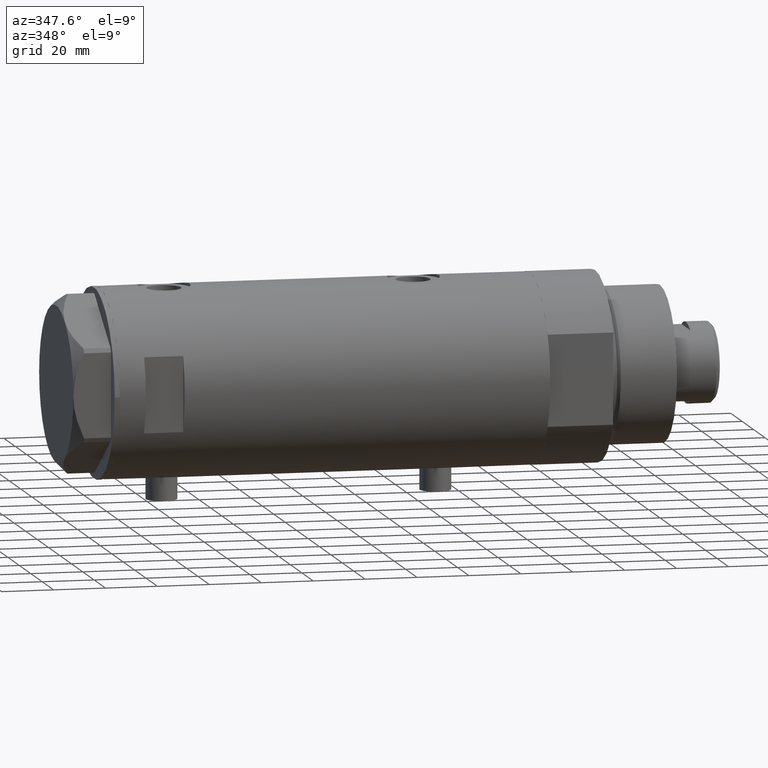
[diagram: clean part render]
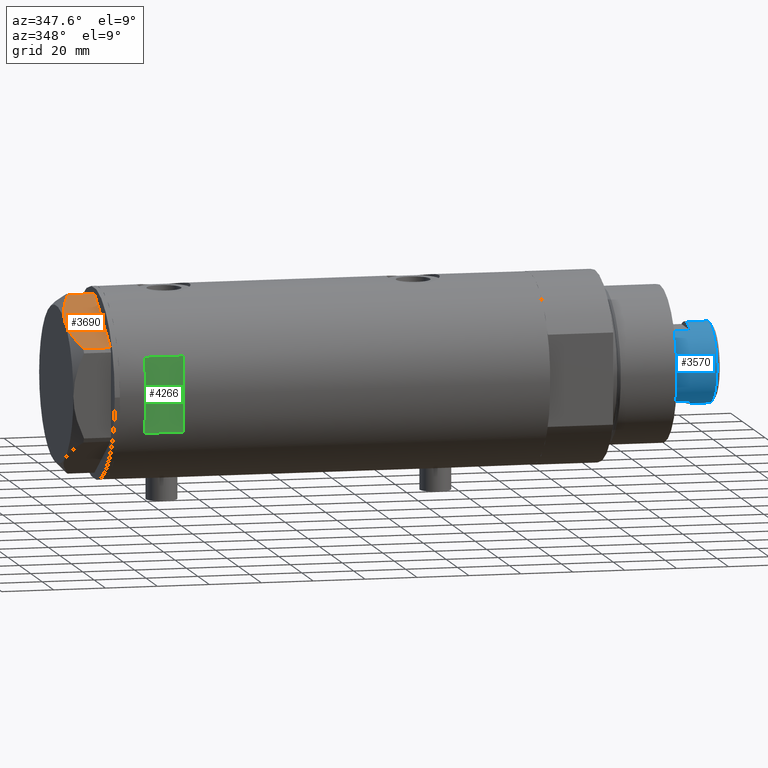
[diagram: same view with three faces highlighted in distinct colors, each labeled with its STEP entity id]
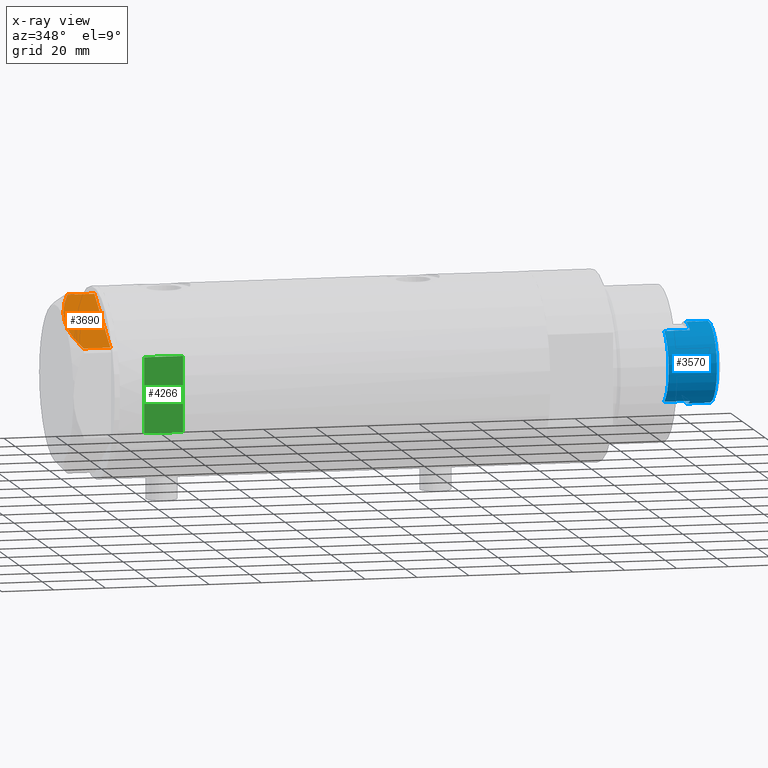
[diagram: x-ray of the same camera — body ghosted, the three highlighted faces saturated]
A machine part, auxiliary view with three faces highlighted in distinct colors.
The next image is the same camera in x-ray (body ghosted, the three faces saturated) — at least one of them is partly hidden behind the body in this view.
Their STEP definitions:

[orange] entity #3690 — the highlighted planar face has unit normal (-0, 0.5, -0.866).
#150 = CARTESIAN_POINT ( 'NONE',  ( -16.22616138060132940, -25.27283751037305137, 14.47500996539161910 ) ) ;
#185 = CARTESIAN_POINT ( 'NONE',  ( -10.17780078270465616, -28.76486012972462447, 14.10092492974135148 ) ) ;
#187 = CARTESIAN_POINT ( 'NONE',  ( -18.07068105770097688, -24.20790357827401351, 14.29910535634586921 ) ) ;
#208 = VERTEX_POINT ( 'NONE', #3869 ) ;
#215 = AXIS2_PLACEMENT_3D ( 'NONE', #2591, #3310, #3959 ) ;
#269 = LINE ( 'NONE', #1652, #3312 ) ;
#490 = CARTESIAN_POINT ( 'NONE',  ( -0.9699484522385841689, -34.08101615137752560, 10.40518423703605322 ) ) ;
#537 = EDGE_CURVE ( 'NONE', #208, #4217, #269, .T. ) ;
#540 = PLANE ( 'NONE',  #215 ) ;
#547 = CARTESIAN_POINT ( 'NONE',  ( -7.227334865371702222, -30.46831242133162476, 13.19311392138147276 ) ) ;
#597 = B_SPLINE_CURVE_WITH_KNOTS ( 'NONE', 3,
 ( #702, #4340, #185, #547, #1210, #913, #832, #3948, #850, #490 ),
 .UNSPECIFIED., .F., .F.,
 ( 4, 2, 2, 2, 4 ),
 ( 0.01795453117522812295, 0.02625795893839792672, 0.02833381587919037853, 0.03040967281998283034, 0.03456138670156772702 ),
 .UNSPECIFIED. ) ;
#659 = CARTESIAN_POINT ( 'NONE',  ( -0.9699484522385841689, -34.08101615137752560, 10.40518423703605322 ) ) ;
#702 = CARTESIAN_POINT ( 'NONE',  ( -14.99999999999999645, -25.98076211353316367, 14.50000000000000000 ) ) ;
#747 = LINE ( 'NONE', #1774, #4264 ) ;
#763 = CARTESIAN_POINT ( 'NONE',  ( -0.9699484522385850571, -34.08101615137752560, 14.50000000000000000 ) ) ;
#832 = CARTESIAN_POINT ( 'NONE',  ( -4.902385341342997194, -31.81062265488187535, 12.31959434659020758 ) ) ;
#850 = CARTESIAN_POINT ( 'NONE',  ( -2.073315687465953960, -33.44398678110400169, 11.01056656432686509 ) ) ;
#899 = CARTESIAN_POINT ( 'NONE',  ( -14.99999999999999645, -25.98076211353316367, 14.50000000000000000 ) ) ;
#913 = CARTESIAN_POINT ( 'NONE',  ( -5.477433827011700451, -31.47861825688396564, 12.55468001512206300 ) ) ;
#1092 = ORIENTED_EDGE ( 'NONE', *, *, #1593, .T. ) ;
#1125 = DIRECTION ( 'NONE',  ( 0.000000000000000000, 0.000000000000000000, 1.000000000000000000 ) ) ;
#1148 = EDGE_LOOP ( 'NONE', ( #2623, #2699, #4338, #1092, #1373 ) ) ;
#1166 = VERTEX_POINT ( 'NONE', #2991 ) ;
#1210 = CARTESIAN_POINT ( 'NONE',  ( -6.639151835533460222, -30.80790005194150183, 12.99122625442232604 ) ) ;
#1373 = ORIENTED_EDGE ( 'NONE', *, *, #2273, .F. ) ;
#1521 = FACE_OUTER_BOUND ( 'NONE', #1148, .T. ) ;
#1593 = EDGE_CURVE ( 'NONE', #4217, #2195, #3859, .T. ) ;
#1618 = B_SPLINE_CURVE_WITH_KNOTS ( 'NONE', 3,
 ( #4384, #2567, #4343, #3929, #2627, #187, #4298, #150, #3994, #899 ),
 .UNSPECIFIED., .F., .F.,
 ( 4, 2, 2, 2, 4 ),
 ( 0.001230196178133391958, 0.009592363676680756152, 0.01377344742595443955, 0.01586398930059127951, 0.01795453117522812295 ),
 .UNSPECIFIED. ) ;
#1652 = CARTESIAN_POINT ( 'NONE',  ( -30.00000000000000000, -17.32050807568877460, 0.000000000000000000 ) ) ;
#1774 = CARTESIAN_POINT ( 'NONE',  ( -29.03005154776141339, -17.88050807568878042, 14.50000000000000000 ) ) ;
#1875 = VECTOR ( 'NONE', #1125, 1000.000000000000000 ) ;
#2195 = VERTEX_POINT ( 'NONE', #659 ) ;
#2273 = EDGE_CURVE ( 'NONE', #1166, #2195, #597, .T. ) ;
#2475 = DIRECTION ( 'NONE',  ( -0.000000000000000000, 0.000000000000000000, -1.000000000000000000 ) ) ;
#2567 = CARTESIAN_POINT ( 'NONE',  ( -26.82462797925472842, -19.15380996664326219, 11.61522964162834626 ) ) ;
#2591 = CARTESIAN_POINT ( 'NONE',  ( -30.00000000000000000, -17.32050807568877460, 14.50000000000000000 ) ) ;
#2623 = ORIENTED_EDGE ( 'NONE', *, *, #2979, .F. ) ;
#2627 = CARTESIAN_POINT ( 'NONE',  ( -19.88494945387373747, -23.16043523136143278, 14.00566141361761119 ) ) ;
#2644 = CARTESIAN_POINT ( 'NONE',  ( -29.03005154776157326, -17.88050807568868805, 10.40518423703595374 ) ) ;
#2699 = ORIENTED_EDGE ( 'NONE', *, *, #2790, .T. ) ;
#2790 = EDGE_CURVE ( 'NONE', #2919, #208, #747, .T. ) ;
#2903 = CARTESIAN_POINT ( 'NONE',  ( -0.9699484522385886098, -34.08101615137752560, 0.000000000000000000 ) ) ;
#2919 = VERTEX_POINT ( 'NONE', #2644 ) ;
#2979 = EDGE_CURVE ( 'NONE', #2919, #1166, #1618, .T. ) ;
#2991 = CARTESIAN_POINT ( 'NONE',  ( -14.99999999999999645, -25.98076211353316367, 14.50000000000000000 ) ) ;
#3048 = DIRECTION ( 'NONE',  ( 0.8660254037844387076, -0.4999999999999997780, 0.000000000000000000 ) ) ;
#3310 = DIRECTION ( 'NONE',  ( 0.4999999999999998335, 0.8660254037844388186, -0.000000000000000000 ) ) ;
#3312 = VECTOR ( 'NONE', #3048, 1000.000000000000227 ) ;
#3690 = ADVANCED_FACE ( 'NONE', ( #1521 ), #540, .F. ) ;
#3859 = LINE ( 'NONE', #763, #1875 ) ;
#3869 = CARTESIAN_POINT ( 'NONE',  ( -29.03005154776141339, -17.88050807568878042, 0.000000000000000000 ) ) ;
#3929 = CARTESIAN_POINT ( 'NONE',  ( -21.07077273125423744, -22.47579984295447630, 13.71922620632299150 ) ) ;
#3948 = CARTESIAN_POINT ( 'NONE',  ( -3.192653970405496811, -32.79773652213460622, 11.56973717813738745 ) ) ;
#3959 = DIRECTION ( 'NONE',  ( -0.8660254037844387076, 0.4999999999999997780, 0.000000000000000000 ) ) ;
#3994 = CARTESIAN_POINT ( 'NONE',  ( -15.61187731150016411, -25.62749458302751648, 14.50000000000000355 ) ) ;
#4217 = VERTEX_POINT ( 'NONE', #2903 ) ;
#4264 = VECTOR ( 'NONE', #2475, 1000.000000000000000 ) ;
#4298 = CARTESIAN_POINT ( 'NONE',  ( -17.45962150578836258, -24.56069897506165489, 14.37423503257922164 ) ) ;
#4338 = ORIENTED_EDGE ( 'NONE', *, *, #537, .T. ) ;
#4340 = CARTESIAN_POINT ( 'NONE',  ( -12.56968319190124639, -27.38390617690504669, 14.50000000000000711 ) ) ;
#4343 = CARTESIAN_POINT ( 'NONE',  ( -24.56959650245797988, -20.45575299680293568, 12.63511531451932512 ) ) ;
#4384 = CARTESIAN_POINT ( 'NONE',  ( -29.03005154776157326, -17.88050807568868805, 10.40518423703595374 ) ) ;

[blue] entity #3570 — the highlighted cylindrical surface (partial cylindrical patch) has radius 15.5 mm, axis along (-1, -0, 0).
#111 = VERTEX_POINT ( 'NONE', #3846 ) ;
#137 = VERTEX_POINT ( 'NONE', #4172 ) ;
#149 = EDGE_CURVE ( 'NONE', #4012, #3947, #1807, .T. ) ;
#166 = ORIENTED_EDGE ( 'NONE', *, *, #3412, .T. ) ;
#181 = EDGE_CURVE ( 'NONE', #111, #1606, #4090, .T. ) ;
#313 = ORIENTED_EDGE ( 'NONE', *, *, #1093, .F. ) ;
#345 = DIRECTION ( 'NONE',  ( -0.000000000000000000, -0.000000000000000000, -1.000000000000000000 ) ) ;
#367 = DIRECTION ( 'NONE',  ( -0.000000000000000000, -0.000000000000000000, -1.000000000000000000 ) ) ;
#369 = CARTESIAN_POINT ( 'NONE',  ( 0.000000000000000000, 0.000000000000000000, 190.0000000000000000 ) ) ;
#375 = DIRECTION ( 'NONE',  ( 1.000000000000000000, 0.000000000000000000, 0.000000000000000000 ) ) ;
#457 = DIRECTION ( 'NONE',  ( -0.000000000000000000, -0.000000000000000000, -1.000000000000000000 ) ) ;
#527 = CARTESIAN_POINT ( 'NONE',  ( 0.000000000000000000, 0.000000000000000000, 200.0000000000000000 ) ) ;
#592 = LINE ( 'NONE', #2859, #3399 ) ;
#596 = EDGE_CURVE ( 'NONE', #3947, #2018, #3604, .T. ) ;
#683 = CARTESIAN_POINT ( 'NONE',  ( 0.000000000000000000, 0.000000000000000000, 208.5999999999999659 ) ) ;
#749 = CARTESIAN_POINT ( 'NONE',  ( 13.48630416385453046, -7.639999999999995239, 200.0000000000000000 ) ) ;
#888 = ORIENTED_EDGE ( 'NONE', *, *, #3307, .T. ) ;
#1072 = CARTESIAN_POINT ( 'NONE',  ( 13.48630416385452691, -7.639999999999914415, 190.0000000000000000 ) ) ;
#1093 = EDGE_CURVE ( 'NONE', #3925, #2018, #3932, .T. ) ;
#1108 = ORIENTED_EDGE ( 'NONE', *, *, #149, .T. ) ;
#1128 = CARTESIAN_POINT ( 'NONE',  ( 15.49999999999999822, 1.898202538678397163E-15, 200.0000000000000000 ) ) ;
#1139 = CYLINDRICAL_SURFACE ( 'NONE', #4412, 15.49999999999999822 ) ;
#1206 = AXIS2_PLACEMENT_3D ( 'NONE', #683, #2090, #2339 ) ;
#1208 = DIRECTION ( 'NONE',  ( 0.000000000000000000, 0.000000000000000000, 1.000000000000000000 ) ) ;
#1216 = AXIS2_PLACEMENT_3D ( 'NONE', #4079, #3486, #375 ) ;
#1391 = EDGE_CURVE ( 'NONE', #3299, #4012, #3167, .T. ) ;
#1416 = CARTESIAN_POINT ( 'NONE',  ( 13.48630416385453046, -7.639999999999995239, 200.0000000000000000 ) ) ;
#1481 = DIRECTION ( 'NONE',  ( 0.000000000000000000, 0.000000000000000000, 1.000000000000000000 ) ) ;
#1517 = AXIS2_PLACEMENT_3D ( 'NONE', #527, #1208, #1564 ) ;
#1527 = CARTESIAN_POINT ( 'NONE',  ( -15.50000000000000178, 0.000000000000000000, 200.0000000000000000 ) ) ;
#1564 = DIRECTION ( 'NONE',  ( 1.000000000000000000, 0.000000000000000000, 0.000000000000000000 ) ) ;
#1606 = VERTEX_POINT ( 'NONE', #1797 ) ;
#1797 = CARTESIAN_POINT ( 'NONE',  ( -15.49999999999999822, 0.000000000000000000, 208.5999999999999659 ) ) ;
#1807 = LINE ( 'NONE', #3568, #3527 ) ;
#1851 = DIRECTION ( 'NONE',  ( -0.000000000000000000, -0.000000000000000000, -1.000000000000000000 ) ) ;
#1892 = ORIENTED_EDGE ( 'NONE', *, *, #596, .T. ) ;
#1920 = CARTESIAN_POINT ( 'NONE',  ( -13.48630416385452335, -7.640000000000004121, 200.0000000000000000 ) ) ;
#1951 = VECTOR ( 'NONE', #3189, 1000.000000000000000 ) ;
#1955 = ORIENTED_EDGE ( 'NONE', *, *, #181, .T. ) ;
#2018 = VERTEX_POINT ( 'NONE', #1072 ) ;
#2090 = DIRECTION ( 'NONE',  ( 0.000000000000000000, 0.000000000000000000, -1.000000000000000000 ) ) ;
#2339 = DIRECTION ( 'NONE',  ( 1.000000000000000000, 0.000000000000000000, 0.000000000000000000 ) ) ;
#2678 = CIRCLE ( 'NONE', #1517, 15.50000000000000000 ) ;
#2811 = VECTOR ( 'NONE', #1851, 1000.000000000000000 ) ;
#2818 = DIRECTION ( 'NONE',  ( -1.000000000000000000, 0.000000000000000000, 0.000000000000000000 ) ) ;
#2859 = CARTESIAN_POINT ( 'NONE',  ( -15.49999999999999822, 0.000000000000000000, 200.0000000000000000 ) ) ;
#2894 = EDGE_CURVE ( 'NONE', #111, #137, #4276, .T. ) ;
#2912 = ORIENTED_EDGE ( 'NONE', *, *, #1391, .T. ) ;
#3107 = CARTESIAN_POINT ( 'NONE',  ( 0.000000000000000000, 0.000000000000000000, 200.0000000000000000 ) ) ;
#3167 = CIRCLE ( 'NONE', #1216, 15.50000000000000000 ) ;
#3178 = FACE_OUTER_BOUND ( 'NONE', #4080, .T. ) ;
#3189 = DIRECTION ( 'NONE',  ( -0.000000000000000000, -0.000000000000000000, -1.000000000000000000 ) ) ;
#3218 = CARTESIAN_POINT ( 'NONE',  ( -13.48630416385452513, -7.639999999999921521, 190.0000000000000000 ) ) ;
#3299 = VERTEX_POINT ( 'NONE', #1527 ) ;
#3307 = EDGE_CURVE ( 'NONE', #3925, #137, #2678, .T. ) ;
#3399 = VECTOR ( 'NONE', #345, 1000.000000000000000 ) ;
#3412 = EDGE_CURVE ( 'NONE', #1606, #3299, #592, .T. ) ;
#3486 = DIRECTION ( 'NONE',  ( 0.000000000000000000, 0.000000000000000000, 1.000000000000000000 ) ) ;
#3527 = VECTOR ( 'NONE', #457, 1000.000000000000000 ) ;
#3568 = CARTESIAN_POINT ( 'NONE',  ( -13.48630416385452691, -7.640000000000001457, 200.0000000000000000 ) ) ;
#3570 = ADVANCED_FACE ( 'NONE', ( #3178 ), #1139, .T. ) ;
#3604 = CIRCLE ( 'NONE', #4247, 15.49999999999999822 ) ;
#3831 = DIRECTION ( 'NONE',  ( 1.000000000000000000, 0.000000000000000000, 0.000000000000000000 ) ) ;
#3846 = CARTESIAN_POINT ( 'NONE',  ( 15.49999999999999822, 1.898202538678397163E-15, 208.5999999999999659 ) ) ;
#3925 = VERTEX_POINT ( 'NONE', #1416 ) ;
#3932 = LINE ( 'NONE', #749, #2811 ) ;
#3947 = VERTEX_POINT ( 'NONE', #3218 ) ;
#4012 = VERTEX_POINT ( 'NONE', #1920 ) ;
#4079 = CARTESIAN_POINT ( 'NONE',  ( 0.000000000000000000, 0.000000000000000000, 200.0000000000000000 ) ) ;
#4080 = EDGE_LOOP ( 'NONE', ( #4142, #1955, #166, #2912, #1108, #1892, #313, #888 ) ) ;
#4090 = CIRCLE ( 'NONE', #1206, 15.49999999999999822 ) ;
#4142 = ORIENTED_EDGE ( 'NONE', *, *, #2894, .F. ) ;
#4172 = CARTESIAN_POINT ( 'NONE',  ( 15.50000000000000178, 1.898202538678397557E-15, 200.0000000000000000 ) ) ;
#4247 = AXIS2_PLACEMENT_3D ( 'NONE', #369, #1481, #3831 ) ;
#4276 = LINE ( 'NONE', #1128, #1951 ) ;
#4412 = AXIS2_PLACEMENT_3D ( 'NONE', #3107, #367, #2818 ) ;

[green] entity #4266 — the highlighted planar face has unit normal (-0, 1, 0).
#97 = ORIENTED_EDGE ( 'NONE', *, *, #176, .T. ) ;
#176 = EDGE_CURVE ( 'NONE', #3870, #2810, #3799, .T. ) ;
#336 = CARTESIAN_POINT ( 'NONE',  ( -14.49137674618942739, -33.50000000000000000, -82.90000000000000568 ) ) ;
#406 = FACE_OUTER_BOUND ( 'NONE', #2081, .T. ) ;
#492 = EDGE_CURVE ( 'NONE', #2810, #4109, #610, .T. ) ;
#610 = LINE ( 'NONE', #2660, #4319 ) ;
#658 = CARTESIAN_POINT ( 'NONE',  ( -36.50000000000000000, -33.50000000000000000, 57.89999999999999147 ) ) ;
#678 = ORIENTED_EDGE ( 'NONE', *, *, #874, .T. ) ;
#750 = CARTESIAN_POINT ( 'NONE',  ( -36.50000000000000000, -33.50000000000000000, 72.89999999999999147 ) ) ;
#753 = ORIENTED_EDGE ( 'NONE', *, *, #4303, .F. ) ;
#838 = DIRECTION ( 'NONE',  ( 0.000000000000000000, 1.000000000000000000, 0.000000000000000000 ) ) ;
#874 = EDGE_CURVE ( 'NONE', #1665, #3870, #3704, .T. ) ;
#1088 = DIRECTION ( 'NONE',  ( 0.000000000000000000, -0.000000000000000000, 1.000000000000000000 ) ) ;
#1475 = DIRECTION ( 'NONE',  ( 1.000000000000000000, -0.000000000000000000, -0.000000000000000000 ) ) ;
#1489 = CARTESIAN_POINT ( 'NONE',  ( 14.49137674618942739, -33.50000000000000000, 57.89999999999999147 ) ) ;
#1563 = VECTOR ( 'NONE', #3425, 1000.000000000000000 ) ;
#1659 = CARTESIAN_POINT ( 'NONE',  ( 14.49137674618942739, -33.50000000000000000, 72.89999999999999147 ) ) ;
#1665 = VERTEX_POINT ( 'NONE', #2243 ) ;
#1890 = VECTOR ( 'NONE', #1475, 1000.000000000000000 ) ;
#1931 = VECTOR ( 'NONE', #2771, 1000.000000000000000 ) ;
#1962 = ORIENTED_EDGE ( 'NONE', *, *, #492, .T. ) ;
#2081 = EDGE_LOOP ( 'NONE', ( #678, #97, #1962, #753 ) ) ;
#2243 = CARTESIAN_POINT ( 'NONE',  ( -14.49137674618942739, -33.50000000000000000, 72.89999999999999147 ) ) ;
#2346 = DIRECTION ( 'NONE',  ( 0.000000000000000000, 0.000000000000000000, 1.000000000000000000 ) ) ;
#2660 = CARTESIAN_POINT ( 'NONE',  ( 14.49137674618942739, -33.50000000000000000, -82.90000000000000568 ) ) ;
#2764 = AXIS2_PLACEMENT_3D ( 'NONE', #3867, #838, #1088 ) ;
#2771 = DIRECTION ( 'NONE',  ( -0.000000000000000000, -0.000000000000000000, -1.000000000000000000 ) ) ;
#2810 = VERTEX_POINT ( 'NONE', #1489 ) ;
#3425 = DIRECTION ( 'NONE',  ( 1.000000000000000000, -0.000000000000000000, -0.000000000000000000 ) ) ;
#3538 = PLANE ( 'NONE',  #2764 ) ;
#3605 = LINE ( 'NONE', #750, #1890 ) ;
#3704 = LINE ( 'NONE', #336, #1931 ) ;
#3799 = LINE ( 'NONE', #658, #1563 ) ;
#3864 = CARTESIAN_POINT ( 'NONE',  ( -14.49137674618942739, -33.50000000000000000, 57.89999999999999147 ) ) ;
#3867 = CARTESIAN_POINT ( 'NONE',  ( -36.50000000000000000, -33.50000000000000000, 72.89999999999999147 ) ) ;
#3870 = VERTEX_POINT ( 'NONE', #3864 ) ;
#4109 = VERTEX_POINT ( 'NONE', #1659 ) ;
#4266 = ADVANCED_FACE ( 'NONE', ( #406 ), #3538, .F. ) ;
#4303 = EDGE_CURVE ( 'NONE', #1665, #4109, #3605, .T. ) ;
#4319 = VECTOR ( 'NONE', #2346, 1000.000000000000000 ) ;